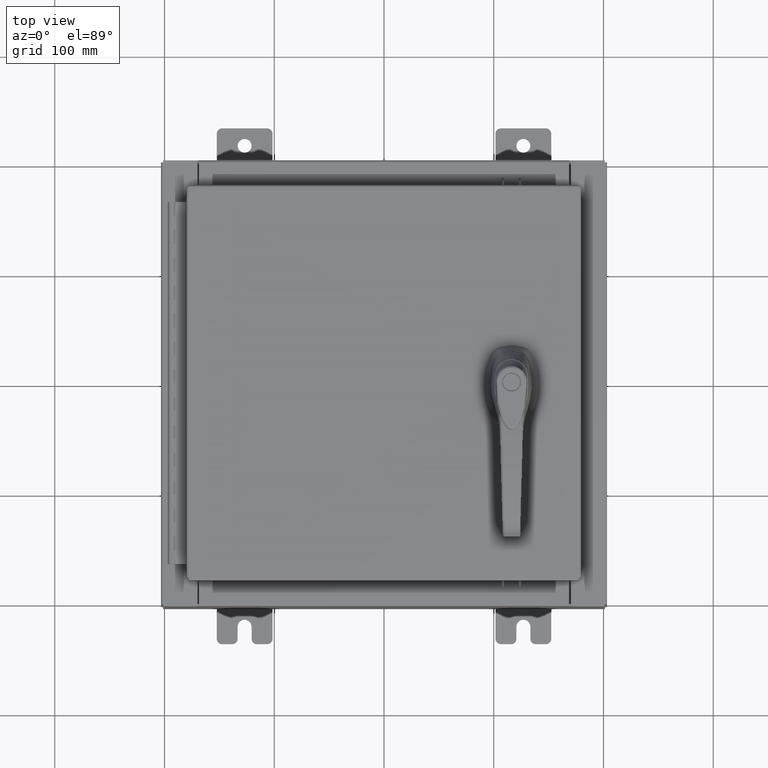
[diagram: clean part render]
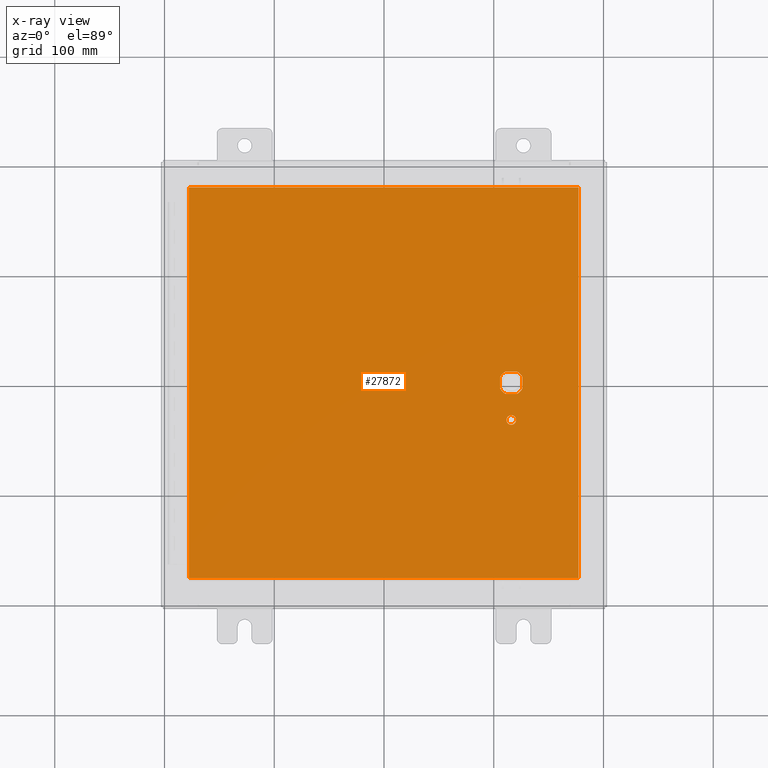
[diagram: x-ray — body ghosted, one internal face saturated and labeled with its STEP entity id]
A machine part, top view, then the same camera in x-ray: the body is ghosted and one INTERNAL B-rep face — a face not visible from any outside direction — is saturated and labeled: STEP entity #27872.
In plain terms, the highlighted planar face has unit normal (0, 0, -1).
Its self-contained STEP definition (entity closure, byte-faithful):
#499 = DIRECTION ( 'NONE',  ( 0.0000000000000000000, -1.000000000000000000, 0.0000000000000000000 ) ) ;
#509 = AXIS2_PLACEMENT_3D ( 'NONE', #13161, #70847, #21479 ) ;
#1403 = LINE ( 'NONE', #15700, #86667 ) ;
#2174 = ORIENTED_EDGE ( 'NONE', *, *, #86139, .F. ) ;
#2361 = VECTOR ( 'NONE', #10636, 39.37007874015748100 ) ;
#2368 = CIRCLE ( 'NONE', #24375, 0.4499999999999156900 ) ;
#7169 = DIRECTION ( 'NONE',  ( -1.000000000000000000, 0.0000000000000000000, -0.0000000000000000000 ) ) ;
#7608 = ORIENTED_EDGE ( 'NONE', *, *, #28696, .F. ) ;
#7885 = ORIENTED_EDGE ( 'NONE', *, *, #72293, .F. ) ;
#9134 = FACE_BOUND ( 'NONE', #80411, .T. ) ;
#9423 = CARTESIAN_POINT ( 'NONE',  ( 4.578000000000002100, 0.0000000000000000000, -0.07470000000000003000 ) ) ;
#10222 = DIRECTION ( 'NONE',  ( 1.000000000000000000, -0.0000000000000000000, -0.0000000000000000000 ) ) ;
#10636 = DIRECTION ( 'NONE',  ( 1.000000000000000000, 0.0000000000000000000, 0.0000000000000000000 ) ) ;
#10899 = LINE ( 'NONE', #91745, #96316 ) ;
#11561 = VECTOR ( 'NONE', #10222, 39.37007874015748100 ) ;
#11999 = ORIENTED_EDGE ( 'NONE', *, *, #68959, .T. ) ;
#13161 = CARTESIAN_POINT ( 'NONE',  ( 4.578000000000002100, 0.0000000000000000000, -0.07470000000000003000 ) ) ;
#14338 = CARTESIAN_POINT ( 'NONE',  ( 6.990299999999997700, 7.006300000000000400, -0.07470000000000000300 ) ) ;
#15700 = CARTESIAN_POINT ( 'NONE',  ( 0.0000000000000000000, 0.4029999999999252000, -0.07470000000000003000 ) ) ;
#17174 = DIRECTION ( 'NONE',  ( 0.0000000000000000000, -1.000000000000000000, 0.0000000000000000000 ) ) ;
#17656 = DIRECTION ( 'NONE',  ( -1.000000000000000000, 0.0000000000000000000, 0.0000000000000000000 ) ) ;
#19495 = CARTESIAN_POINT ( 'NONE',  ( 4.749500000000002100, -1.338000000000000100, -0.07470000000000003000 ) ) ;
#19977 = EDGE_CURVE ( 'NONE', #51233, #51147, #75090, .T. ) ;
#20788 = CARTESIAN_POINT ( 'NONE',  ( 4.578000000000002100, -1.338000000000000100, -0.07470000000000003000 ) ) ;
#21479 = DIRECTION ( 'NONE',  ( -1.000000000000000000, 0.0000000000000000000, 0.0000000000000000000 ) ) ;
#23297 = EDGE_LOOP ( 'NONE', ( #2174, #7608, #7885, #99316 ) ) ;
#24037 = DIRECTION ( 'NONE',  ( -1.000000000000000000, 0.0000000000000000000, 0.0000000000000000000 ) ) ;
#24375 = AXIS2_PLACEMENT_3D ( 'NONE', #9423, #67047, #17656 ) ;
#24772 = CARTESIAN_POINT ( 'NONE',  ( 4.578000000000002100, 0.0000000000000000000, -0.07470000000000003000 ) ) ;
#26310 = DIRECTION ( 'NONE',  ( -1.000000000000000000, -0.0000000000000000000, -0.0000000000000000000 ) ) ;
#26364 = CARTESIAN_POINT ( 'NONE',  ( 4.578000000000002100, 0.0000000000000000000, -0.07470000000000003000 ) ) ;
#27872 = ADVANCED_FACE ( 'NONE', ( #9134, #28439, #31052 ), #39985, .T. ) ;
#28439 = FACE_OUTER_BOUND ( 'NONE', #23297, .T. ) ;
#28492 = VECTOR ( 'NONE', #26310, 39.37007874015748100 ) ;
#28642 = VERTEX_POINT ( 'NONE', #66800 ) ;
#28696 = EDGE_CURVE ( 'NONE', #91981, #101937, #77424, .T. ) ;
#28755 = ORIENTED_EDGE ( 'NONE', *, *, #67434, .T. ) ;
#29111 = DIRECTION ( 'NONE',  ( -1.000000000000000000, 0.0000000000000000000, 0.0000000000000000000 ) ) ;
#31052 = FACE_BOUND ( 'NONE', #101259, .T. ) ;
#31174 = VECTOR ( 'NONE', #499, 39.37007874015748100 ) ;
#33094 = DIRECTION ( 'NONE',  ( -1.000000000000000000, 0.0000000000000000000, 0.0000000000000000000 ) ) ;
#33322 = CARTESIAN_POINT ( 'NONE',  ( 4.980999999999927900, 0.2002273707563080300, -0.07470000000000003000 ) ) ;
#33409 = VERTEX_POINT ( 'NONE', #48538 ) ;
#34317 = CIRCLE ( 'NONE', #55922, 0.4499999999999156900 ) ;
#34666 = DIRECTION ( 'NONE',  ( -1.000000000000000000, 8.881784197001256300E-016, 0.0000000000000000000 ) ) ;
#35326 = CIRCLE ( 'NONE', #39597, 0.4499999999999156900 ) ;
#37048 = CARTESIAN_POINT ( 'NONE',  ( 4.175000000000076200, -0.2002273707563079800, -0.07470000000000003000 ) ) ;
#37103 = CIRCLE ( 'NONE', #509, 0.4499999999999156900 ) ;
#39597 = AXIS2_PLACEMENT_3D ( 'NONE', #24772, #82497, #33094 ) ;
#39985 = PLANE ( 'NONE',  #68733 ) ;
#43236 = EDGE_CURVE ( 'NONE', #72987, #33409, #94524, .T. ) ;
#43338 = EDGE_CURVE ( 'NONE', #88537, #56851, #1403, .T. ) ;
#43856 = VERTEX_POINT ( 'NONE', #94362 ) ;
#45634 = DIRECTION ( 'NONE',  ( -0.0000000000000000000, -0.0000000000000000000, 1.000000000000000000 ) ) ;
#46535 = VERTEX_POINT ( 'NONE', #76174 ) ;
#47353 = EDGE_CURVE ( 'NONE', #56851, #43856, #37103, .T. ) ;
#48538 = CARTESIAN_POINT ( 'NONE',  ( -6.990300000000001300, 7.006299999999998600, -0.07470000000000000300 ) ) ;
#50067 = EDGE_CURVE ( 'NONE', #98747, #46535, #63841, .T. ) ;
#50409 = VERTEX_POINT ( 'NONE', #76700 ) ;
#51147 = VERTEX_POINT ( 'NONE', #19495 ) ;
#51233 = VERTEX_POINT ( 'NONE', #86693 ) ;
#51321 = CARTESIAN_POINT ( 'NONE',  ( -6.990300000000001300, -7.006300000000000400, -0.07470000000000021100 ) ) ;
#52253 = CARTESIAN_POINT ( 'NONE',  ( 6.990299999999998600, -7.006300000000000400, -0.07470000000000000300 ) ) ;
#55110 = EDGE_CURVE ( 'NONE', #28642, #46535, #2368, .T. ) ;
#55922 = AXIS2_PLACEMENT_3D ( 'NONE', #26364, #84119, #34666 ) ;
#55982 = ORIENTED_EDGE ( 'NONE', *, *, #43338, .T. ) ;
#56171 = CARTESIAN_POINT ( 'NONE',  ( 0.0000000000000000000, 0.0000000000000000000, -0.07470000000000000300 ) ) ;
#56508 = DIRECTION ( 'NONE',  ( 0.0000000000000000000, 0.0000000000000000000, -1.000000000000000000 ) ) ;
#56851 = VERTEX_POINT ( 'NONE', #62356 ) ;
#58245 = CARTESIAN_POINT ( 'NONE',  ( 4.980999999999927900, 0.0000000000000000000, -0.07470000000000003000 ) ) ;
#59399 = CARTESIAN_POINT ( 'NONE',  ( 6.990299999999998600, 7.006300000000000400, -0.07470000000000021100 ) ) ;
#60093 = DIRECTION ( 'NONE',  ( 0.0000000000000000000, 1.000000000000000000, 0.0000000000000000000 ) ) ;
#61143 = AXIS2_PLACEMENT_3D ( 'NONE', #20788, #78540, #29111 ) ;
#61863 = CARTESIAN_POINT ( 'NONE',  ( -6.990300000000000400, -7.006300000000000400, -0.07470000000000000300 ) ) ;
#62356 = CARTESIAN_POINT ( 'NONE',  ( 4.377772629243692900, 0.4029999999999252000, -0.07470000000000003000 ) ) ;
#63632 = ORIENTED_EDGE ( 'NONE', *, *, #19977, .T. ) ;
#63817 = ORIENTED_EDGE ( 'NONE', *, *, #98129, .T. ) ;
#63841 = LINE ( 'NONE', #58245, #83352 ) ;
#66800 = CARTESIAN_POINT ( 'NONE',  ( 4.778227370756312100, -0.4029999999999252000, -0.07470000000000003000 ) ) ;
#67047 = DIRECTION ( 'NONE',  ( -0.0000000000000000000, -0.0000000000000000000, 1.000000000000000000 ) ) ;
#67342 = ORIENTED_EDGE ( 'NONE', *, *, #104025, .T. ) ;
#67434 = EDGE_CURVE ( 'NONE', #76343, #50409, #34317, .T. ) ;
#68134 = LINE ( 'NONE', #93054, #2361 ) ;
#68733 = AXIS2_PLACEMENT_3D ( 'NONE', #56171, #56508, #7169 ) ;
#68959 = EDGE_CURVE ( 'NONE', #43856, #76343, #10899, .T. ) ;
#70847 = DIRECTION ( 'NONE',  ( -0.0000000000000000000, -0.0000000000000000000, 1.000000000000000000 ) ) ;
#72293 = EDGE_CURVE ( 'NONE', #33409, #91981, #97256, .T. ) ;
#72987 = VERTEX_POINT ( 'NONE', #14338 ) ;
#75090 = CIRCLE ( 'NONE', #85111, 0.1715000000000000700 ) ;
#76174 = CARTESIAN_POINT ( 'NONE',  ( 4.980999999999927900, -0.2002273707563080300, -0.07470000000000003000 ) ) ;
#76343 = VERTEX_POINT ( 'NONE', #37048 ) ;
#76700 = CARTESIAN_POINT ( 'NONE',  ( 4.377772629243692900, -0.4029999999999250300, -0.07470000000000003000 ) ) ;
#77424 = LINE ( 'NONE', #51321, #11561 ) ;
#78540 = DIRECTION ( 'NONE',  ( -0.0000000000000000000, -0.0000000000000000000, 1.000000000000000000 ) ) ;
#80411 = EDGE_LOOP ( 'NONE', ( #67342, #63632 ) ) ;
#82497 = DIRECTION ( 'NONE',  ( -0.0000000000000000000, -0.0000000000000000000, 1.000000000000000000 ) ) ;
#83157 = EDGE_CURVE ( 'NONE', #50409, #28642, #68134, .T. ) ;
#83352 = VECTOR ( 'NONE', #17174, 39.37007874015748100 ) ;
#83929 = CIRCLE ( 'NONE', #61143, 0.1715000000000000700 ) ;
#84119 = DIRECTION ( 'NONE',  ( -0.0000000000000000000, -0.0000000000000000000, 1.000000000000000000 ) ) ;
#85096 = CARTESIAN_POINT ( 'NONE',  ( 6.990299999999998600, -7.006300000000000400, -0.07470000000000021100 ) ) ;
#85111 = AXIS2_PLACEMENT_3D ( 'NONE', #95263, #45634, #103611 ) ;
#86139 = EDGE_CURVE ( 'NONE', #101937, #72987, #95203, .T. ) ;
#86667 = VECTOR ( 'NONE', #24037, 39.37007874015748100 ) ;
#86693 = CARTESIAN_POINT ( 'NONE',  ( 4.406500000000002100, -1.338000000000000100, -0.07470000000000003000 ) ) ;
#87788 = ORIENTED_EDGE ( 'NONE', *, *, #55110, .T. ) ;
#88537 = VERTEX_POINT ( 'NONE', #102592 ) ;
#89963 = VECTOR ( 'NONE', #60093, 39.37007874015748100 ) ;
#91745 = CARTESIAN_POINT ( 'NONE',  ( 4.175000000000076200, 0.0000000000000000000, -0.07470000000000003000 ) ) ;
#91981 = VERTEX_POINT ( 'NONE', #61863 ) ;
#93054 = CARTESIAN_POINT ( 'NONE',  ( 0.0000000000000000000, -0.4029999999999252000, -0.07470000000000003000 ) ) ;
#94362 = CARTESIAN_POINT ( 'NONE',  ( 4.175000000000076200, 0.2002273707563080300, -0.07470000000000003000 ) ) ;
#94524 = LINE ( 'NONE', #59399, #28492 ) ;
#95203 = LINE ( 'NONE', #85096, #89963 ) ;
#95263 = CARTESIAN_POINT ( 'NONE',  ( 4.578000000000002100, -1.338000000000000100, -0.07470000000000003000 ) ) ;
#95689 = ORIENTED_EDGE ( 'NONE', *, *, #50067, .F. ) ;
#96316 = VECTOR ( 'NONE', #100149, 39.37007874015748100 ) ;
#96339 = ORIENTED_EDGE ( 'NONE', *, *, #47353, .T. ) ;
#97256 = LINE ( 'NONE', #99576, #31174 ) ;
#98129 = EDGE_CURVE ( 'NONE', #98747, #88537, #35326, .T. ) ;
#98747 = VERTEX_POINT ( 'NONE', #33322 ) ;
#99316 = ORIENTED_EDGE ( 'NONE', *, *, #43236, .F. ) ;
#99576 = CARTESIAN_POINT ( 'NONE',  ( -6.990300000000001300, 7.006300000000000400, -0.07469999999999965600 ) ) ;
#100149 = DIRECTION ( 'NONE',  ( 0.0000000000000000000, -1.000000000000000000, 0.0000000000000000000 ) ) ;
#100393 = ORIENTED_EDGE ( 'NONE', *, *, #83157, .T. ) ;
#101259 = EDGE_LOOP ( 'NONE', ( #87788, #95689, #63817, #55982, #96339, #11999, #28755, #100393 ) ) ;
#101937 = VERTEX_POINT ( 'NONE', #52253 ) ;
#102592 = CARTESIAN_POINT ( 'NONE',  ( 4.778227370756312100, 0.4029999999999250300, -0.07470000000000003000 ) ) ;
#103611 = DIRECTION ( 'NONE',  ( -1.000000000000000000, 0.0000000000000000000, 0.0000000000000000000 ) ) ;
#104025 = EDGE_CURVE ( 'NONE', #51147, #51233, #83929, .T. ) ;